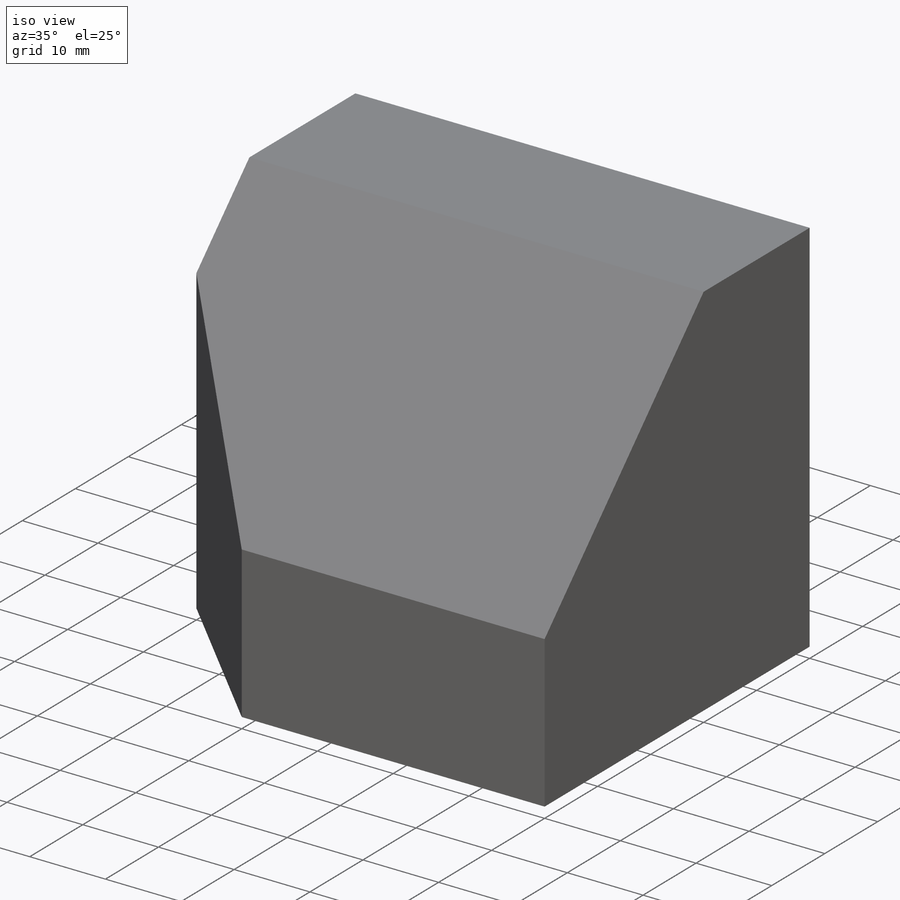
[diagram: iso view]
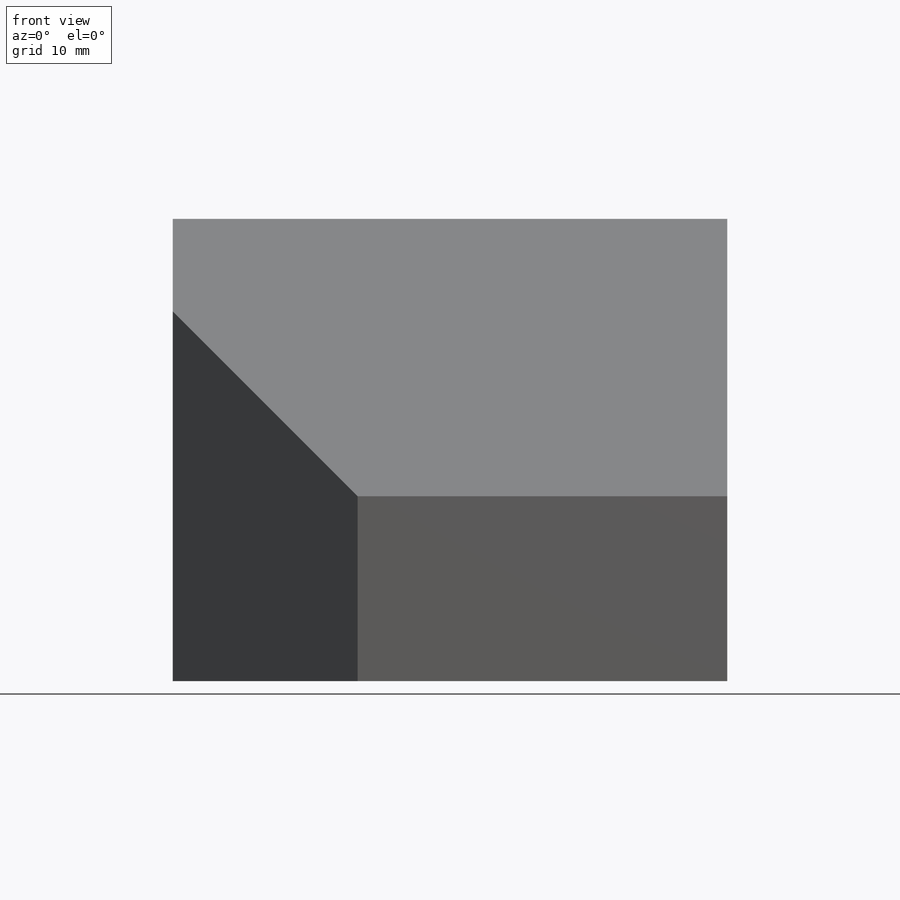
[diagram: front view]
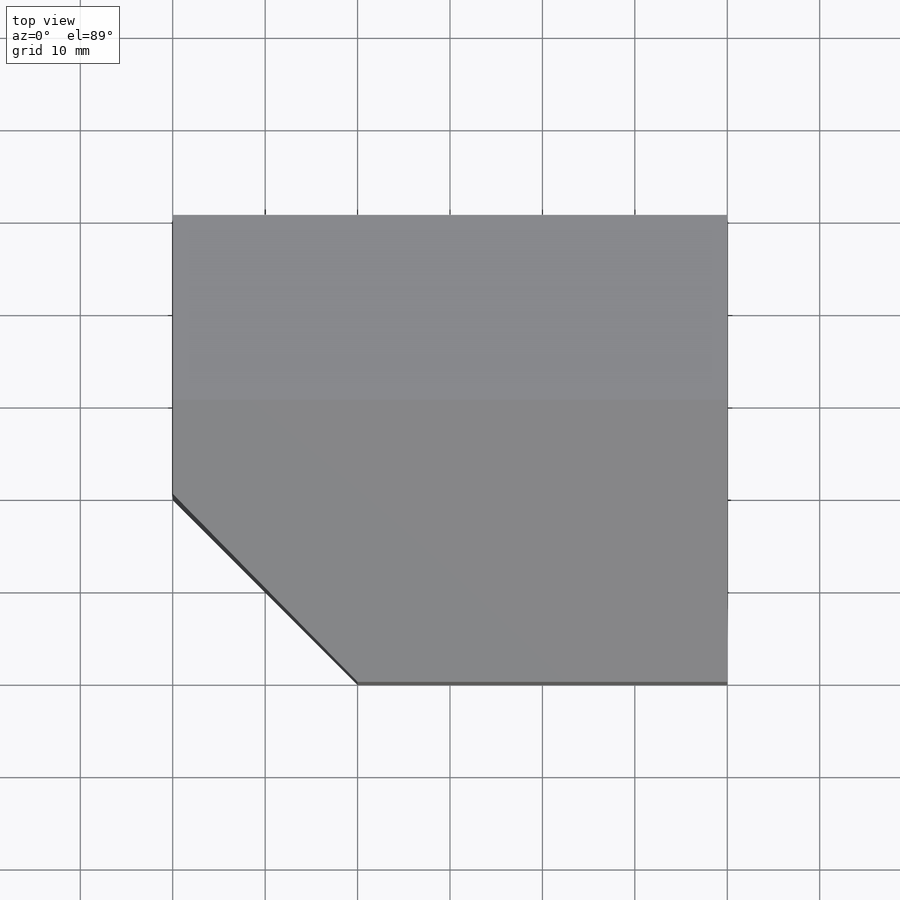
[diagram: top view]
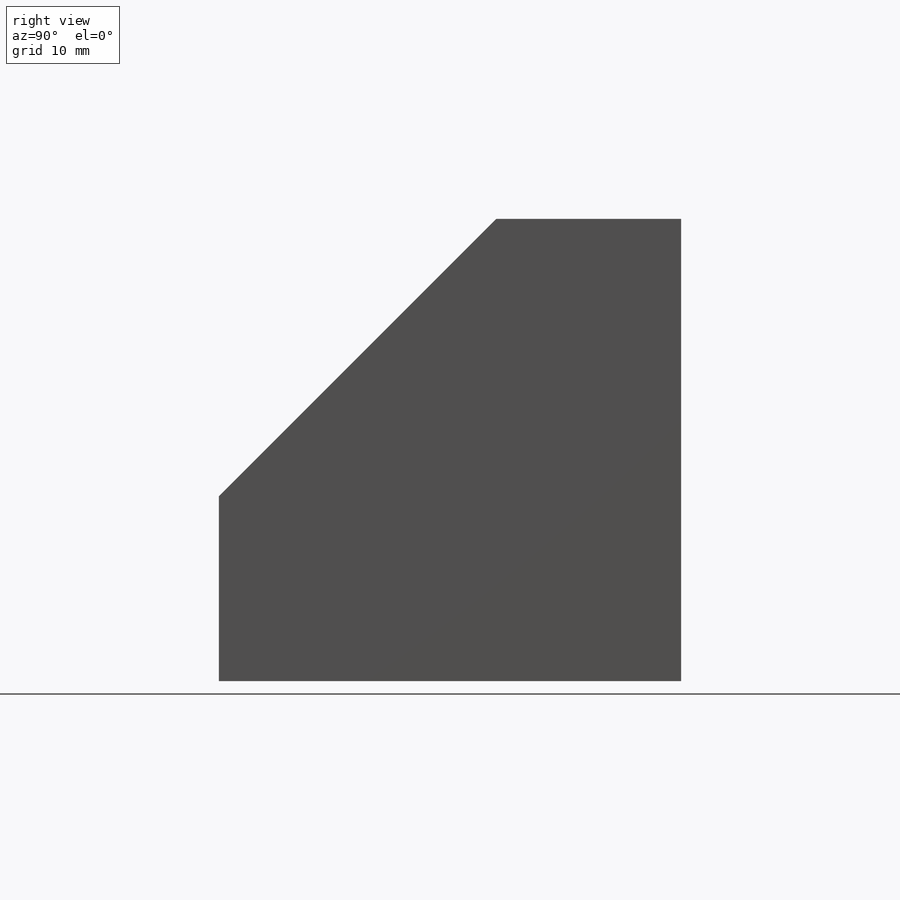
[diagram: right view]
SOLIDWORKS PART (.sldprt)
format: sldprt  version: not decoded by parser v0  size: 201,216 bytes
history: native  units: mm
features: sketch x9, cut_extrude x6, extrude x3, plane x3, material x1 (+13 scaffold rows collapsed)
feature tree (35):
  scaffold x13  (default folders/planes/origin — collapsed)
  material  "Material <not specified>"
  sketch  "Sketch1"  dims[D1=60.0mm D2=50.0mm]
  extrude  "Boss-Extrude1"  Depth=50mm
  sketch  "Sketch2"  dims[D1=20.0mm D2=20.0mm]
  cut_extrude  "Cut-Extrude1"  Depth=50mm
  sketch  "Sketch3"  dims[D1=30.0mm D2=60.0mm]
  cut_extrude  "Cut-Extrude2"  Depth=30mm
  plane  "Plane1"
  sketch  "Sketch4"
  extrude  "Boss-Extrude2"  Depth=30mm
  plane  "Plane2"
  plane  "Plane3"
  sketch  "Sketch9"
  cut_extrude  "Cut-Extrude3"  Depth=10mm
  sketch  "Sketch10"
  cut_extrude  "Cut-Extrude4"  Depth=10mm
  sketch  "Sketch18"
  extrude  "Boss-Extrude7"  Depth=30mm
  sketch  "Sketch19"
  cut_extrude  "Cut-Extrude10"  Depth=30mm
  sketch  "Sketch20"  dims[D1=60.0mm D2=~42.426407mm]
  cut_extrude  "Cut-Extrude11"  Depth=30mm
decode coverage: 13 of 18 modeling features carry decoded parameters
note: ~ marks probable driven/reference dimensions
note: suppression state not decoded; provenance and decode notes live in map.json
